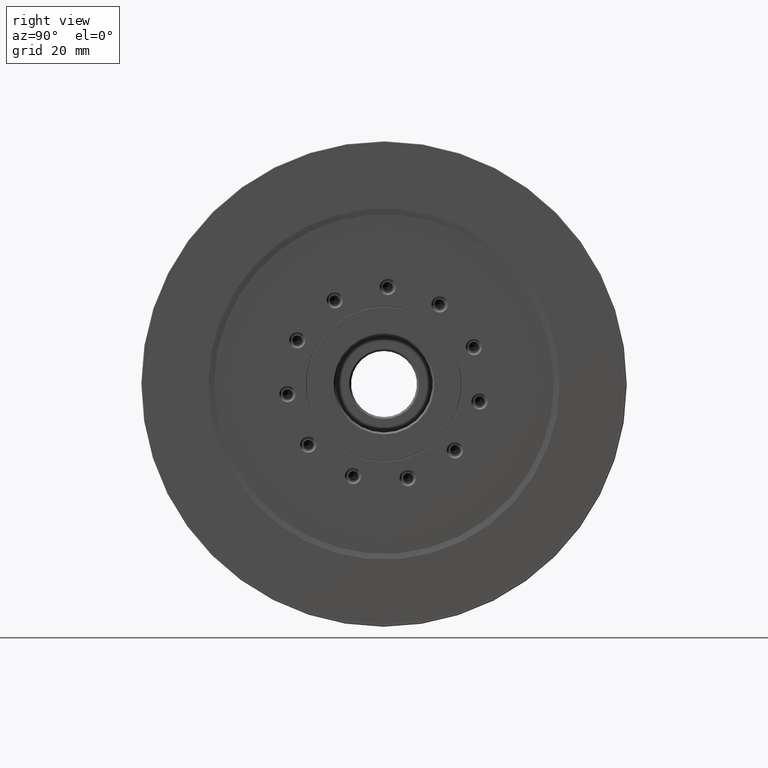
[diagram: clean part render]
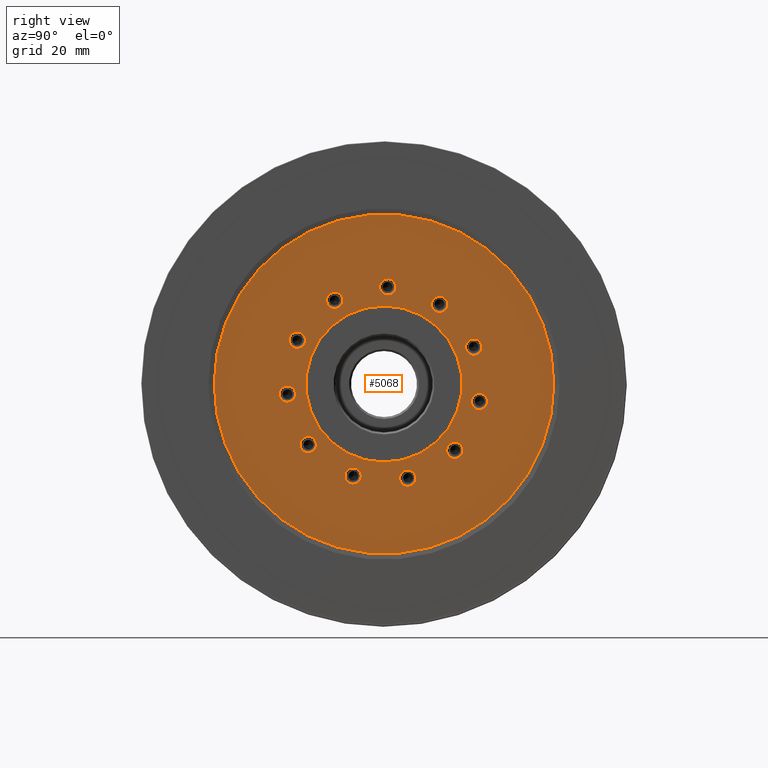
[diagram: same view with one face highlighted and labeled with its STEP entity id]
A machine part, right view. The second image highlights one B-rep face of the part: STEP entity #5068.
In plain terms, the highlighted planar face has unit normal (1, 0, 0).
Its self-contained STEP definition (entity closure, byte-faithful):
#49 = CARTESIAN_POINT ( 'NONE',  ( 0.0000000000000000000, 0.0000000000000000000, 0.0000000000000000000 ) ) ;
#70 = CARTESIAN_POINT ( 'NONE',  ( -2.168404344971008868E-16, 20.20759024478783417, -16.16307696254305881 ) ) ;
#134 = ORIENTED_EDGE ( 'NONE', *, *, #250, .T. ) ;
#167 = DIRECTION ( 'NONE',  ( 0.0000000000000000000, -0.9096319953545195514, 0.4154150130018839371 ) ) ;
#171 = CIRCLE ( 'NONE', #822, 2.100000000000004530 ) ;
#223 = AXIS2_PLACEMENT_3D ( 'NONE', #4917, #6428, #2395 ) ;
#236 = EDGE_LOOP ( 'NONE', ( #3576, #2098 ) ) ;
#249 = DIRECTION ( 'NONE',  ( 0.0000000000000000000, 0.0000000000000000000, -1.000000000000000000 ) ) ;
#250 = EDGE_CURVE ( 'NONE', #4642, #2436, #6564, .T. ) ;
#255 = FACE_BOUND ( 'NONE', #4768, .T. ) ;
#309 = ORIENTED_EDGE ( 'NONE', *, *, #6037, .T. ) ;
#378 = VERTEX_POINT ( 'NONE', #2579 ) ;
#381 = AXIS2_PLACEMENT_3D ( 'NONE', #2697, #1157, #167 ) ;
#392 = EDGE_CURVE ( 'NONE', #1994, #6565, #6323, .T. ) ;
#429 = AXIS2_PLACEMENT_3D ( 'NONE', #6129, #5177, #2077 ) ;
#455 = CIRCLE ( 'NONE', #5137, 20.10000000000003340 ) ;
#472 = ORIENTED_EDGE ( 'NONE', *, *, #2017, .T. ) ;
#480 = FACE_BOUND ( 'NONE', #4872, .T. ) ;
#559 = DIRECTION ( 'NONE',  ( -1.000000000000000000, 0.0000000000000000000, 0.0000000000000000000 ) ) ;
#674 = DIRECTION ( 'NONE',  ( 0.0000000000000000000, 0.9898214418809341275, -0.1423148382732750961 ) ) ;
#776 = AXIS2_PLACEMENT_3D ( 'NONE', #2665, #3702, #6299 ) ;
#781 = CARTESIAN_POINT ( 'NONE',  ( -2.168404344971008868E-16, -18.87440008187672547, -17.70166042911191084 ) ) ;
#785 = CIRCLE ( 'NONE', #2498, 2.100000000000004530 ) ;
#799 = EDGE_LOOP ( 'NONE', ( #2333, #2367 ) ) ;
#801 = EDGE_LOOP ( 'NONE', ( #6113, #3688 ) ) ;
#822 = AXIS2_PLACEMENT_3D ( 'NONE', #3136, #4749, #4270 ) ;
#829 = CIRCLE ( 'NONE', #381, 2.100000000000003642 ) ;
#841 = EDGE_CURVE ( 'NONE', #378, #4552, #5377, .T. ) ;
#844 = EDGE_LOOP ( 'NONE', ( #2960, #2921 ) ) ;
#857 = EDGE_CURVE ( 'NONE', #3016, #2118, #5456, .T. ) ;
#859 = VERTEX_POINT ( 'NONE', #6596 ) ;
#867 = VERTEX_POINT ( 'NONE', #5188 ) ;
#877 = VERTEX_POINT ( 'NONE', #3160 ) ;
#897 = FACE_BOUND ( 'NONE', #801, .T. ) ;
#898 = ORIENTED_EDGE ( 'NONE', *, *, #6075, .T. ) ;
#977 = DIRECTION ( 'NONE',  ( 0.0000000000000000000, -0.9898214418809321291, -0.1423148382732883910 ) ) ;
#1065 = CARTESIAN_POINT ( 'NONE',  ( -2.168404344971008868E-16, -7.894989690375383340, -23.72064792093307162 ) ) ;
#1073 = CIRCLE ( 'NONE', #1637, 20.10000000000003340 ) ;
#1126 = DIRECTION ( 'NONE',  ( 0.0000000000000000000, -0.7557495743542546052, -0.6548607339452892084 ) ) ;
#1157 = DIRECTION ( 'NONE',  ( -1.000000000000000000, 0.0000000000000000000, -0.0000000000000000000 ) ) ;
#1187 = DIRECTION ( 'NONE',  ( 0.0000000000000000000, -0.5406408174555985546, 0.8412535328311806504 ) ) ;
#1274 = CARTESIAN_POINT ( 'NONE',  ( -2.168404344971008868E-16, 6.182662513855665232, -24.22343254453761219 ) ) ;
#1288 = ORIENTED_EDGE ( 'NONE', *, *, #1727, .T. ) ;
#1290 = CARTESIAN_POINT ( 'NONE',  ( 0.0000000000000000000, -2.584669498855469265E-15, -3.499488488377420905E-14 ) ) ;
#1370 = CIRCLE ( 'NONE', #429, 43.73482816843974774 ) ;
#1466 = EDGE_CURVE ( 'NONE', #2436, #4642, #4575, .T. ) ;
#1485 = AXIS2_PLACEMENT_3D ( 'NONE', #4484, #4545, #3995 ) ;
#1548 = CARTESIAN_POINT ( 'NONE',  ( -2.168404344971008868E-16, 18.29736305454335366, -17.03544848984704174 ) ) ;
#1565 = DIRECTION ( 'NONE',  ( 0.0000000000000000000, 0.0000000000000000000, 1.000000000000000000 ) ) ;
#1593 = DIRECTION ( 'NONE',  ( -1.000000000000000000, -0.0000000000000000000, 0.0000000000000000000 ) ) ;
#1622 = EDGE_LOOP ( 'NONE', ( #4262, #6208 ) ) ;
#1637 = AXIS2_PLACEMENT_3D ( 'NONE', #6431, #2844, #249 ) ;
#1650 = VERTEX_POINT ( 'NONE', #2615 ) ;
#1659 = CARTESIAN_POINT ( 'NONE',  ( -2.168404344971008868E-16, -20.05767682061076229, -13.67178993993102232 ) ) ;
#1660 = CARTESIAN_POINT ( 'NONE',  ( -2.168404344971008868E-16, 6.182662513855665232, -24.22343254453761219 ) ) ;
#1663 = CARTESIAN_POINT ( 'NONE',  ( -2.168404344971008868E-16, 14.25806592337406187, 20.53551937801232441 ) ) ;
#1727 = EDGE_CURVE ( 'NONE', #2812, #1650, #171, .T. ) ;
#1731 = EDGE_CURVE ( 'NONE', #2220, #3802, #4491, .T. ) ;
#1732 = VERTEX_POINT ( 'NONE', #5253 ) ;
#1808 = CIRCLE ( 'NONE', #6702, 2.100000000000004530 ) ;
#1830 = CARTESIAN_POINT ( 'NONE',  ( -2.168404344971008868E-16, 23.09698831278215891, 11.66708580912726845 ) ) ;
#1864 = FACE_BOUND ( 'NONE', #844, .T. ) ;
#1901 = ORIENTED_EDGE ( 'NONE', *, *, #5374, .F. ) ;
#1994 = VERTEX_POINT ( 'NONE', #2338 ) ;
#1997 = AXIS2_PLACEMENT_3D ( 'NONE', #2028, #2074, #3790 ) ;
#2008 = AXIS2_PLACEMENT_3D ( 'NONE', #1548, #1593, #2601 ) ;
#2017 = EDGE_CURVE ( 'NONE', #3802, #2220, #2066, .T. ) ;
#2028 = CARTESIAN_POINT ( 'NONE',  ( -2.168404344971008868E-16, 24.60278010840296403, -4.438829906357230293 ) ) ;
#2066 = CIRCLE ( 'NONE', #5556, 2.100000000000003197 ) ;
#2074 = DIRECTION ( 'NONE',  ( -1.000000000000000000, -0.0000000000000000000, 0.0000000000000000000 ) ) ;
#2077 = DIRECTION ( 'NONE',  ( 0.0000000000000000000, 0.0000000000000000000, -1.000000000000000000 ) ) ;
#2098 = ORIENTED_EDGE ( 'NONE', *, *, #3935, .T. ) ;
#2118 = VERTEX_POINT ( 'NONE', #4735 ) ;
#2147 = EDGE_CURVE ( 'NONE', #6067, #6343, #2320, .T. ) ;
#2149 = CARTESIAN_POINT ( 'NONE',  ( -2.168404344971008868E-16, -12.75675082652259285, 21.50035600519245449 ) ) ;
#2163 = AXIS2_PLACEMENT_3D ( 'NONE', #1065, #2685, #5765 ) ;
#2167 = DIRECTION ( 'NONE',  ( 0.0000000000000000000, -0.5406408174555985546, 0.8412535328311806504 ) ) ;
#2182 = DIRECTION ( 'NONE',  ( -1.000000000000000000, 0.0000000000000000000, 0.0000000000000000000 ) ) ;
#2220 = VERTEX_POINT ( 'NONE', #3360 ) ;
#2283 = DIRECTION ( 'NONE',  ( 0.0000000000000000000, 0.0000000000000000000, -1.000000000000000000 ) ) ;
#2320 = CIRCLE ( 'NONE', #776, 2.100000000000003642 ) ;
#2333 = ORIENTED_EDGE ( 'NONE', *, *, #2147, .T. ) ;
#2338 = CARTESIAN_POINT ( 'NONE',  ( -2.168404344971008868E-16, 15.39341164003082163, 18.76888695906684035 ) ) ;
#2352 = AXIS2_PLACEMENT_3D ( 'NONE', #1274, #3305, #6447 ) ;
#2367 = ORIENTED_EDGE ( 'NONE', *, *, #4128, .T. ) ;
#2395 = DIRECTION ( 'NONE',  ( 0.0000000000000000000, 0.2817325568414366099, -0.9594929736144953702 ) ) ;
#2436 = VERTEX_POINT ( 'NONE', #5564 ) ;
#2498 = AXIS2_PLACEMENT_3D ( 'NONE', #1663, #5305, #1187 ) ;
#2515 = ORIENTED_EDGE ( 'NONE', *, *, #3132, .T. ) ;
#2531 = FACE_OUTER_BOUND ( 'NONE', #2972, .T. ) ;
#2538 = EDGE_LOOP ( 'NONE', ( #2515, #4788 ) ) ;
#2568 = DIRECTION ( 'NONE',  ( -1.000000000000000000, -0.0000000000000000000, 0.0000000000000000000 ) ) ;
#2579 = CARTESIAN_POINT ( 'NONE',  ( -2.168404344971008868E-16, -23.94270585263679152, 9.815222710282570873 ) ) ;
#2601 = DIRECTION ( 'NONE',  ( 0.0000000000000000000, 0.9096319953545134451, 0.4154150130018973708 ) ) ;
#2615 = CARTESIAN_POINT ( 'NONE',  ( -2.168404344971008868E-16, 23.09698831278215891, 7.467085809127261165 ) ) ;
#2665 = CARTESIAN_POINT ( 'NONE',  ( -2.168404344971008868E-16, 0.8923083459744240997, 24.98407064142479328 ) ) ;
#2685 = DIRECTION ( 'NONE',  ( -1.000000000000000000, 0.0000000000000000000, 0.0000000000000000000 ) ) ;
#2697 = CARTESIAN_POINT ( 'NONE',  ( -2.168404344971008868E-16, 0.8923083459744240997, 24.98407064142479328 ) ) ;
#2738 = AXIS2_PLACEMENT_3D ( 'NONE', #3731, #2182, #1126 ) ;
#2812 = VERTEX_POINT ( 'NONE', #1830 ) ;
#2833 = ORIENTED_EDGE ( 'NONE', *, *, #2925, .T. ) ;
#2844 = DIRECTION ( 'NONE',  ( -1.000000000000000000, 0.0000000000000000000, 0.0000000000000000000 ) ) ;
#2921 = ORIENTED_EDGE ( 'NONE', *, *, #392, .T. ) ;
#2925 = EDGE_CURVE ( 'NONE', #1650, #2812, #3645, .T. ) ;
#2955 = CIRCLE ( 'NONE', #4496, 2.100000000000004086 ) ;
#2960 = ORIENTED_EDGE ( 'NONE', *, *, #6131, .T. ) ;
#2972 = EDGE_LOOP ( 'NONE', ( #1901, #3334 ) ) ;
#2988 = DIRECTION ( 'NONE',  ( 0.0000000000000000000, -0.7557495743542546052, -0.6548607339452892084 ) ) ;
#3016 = VERTEX_POINT ( 'NONE', #5301 ) ;
#3035 = EDGE_LOOP ( 'NONE', ( #5912, #898 ) ) ;
#3104 = FACE_BOUND ( 'NONE', #236, .T. ) ;
#3106 = DIRECTION ( 'NONE',  ( 0.0000000000000000000, 0.0000000000000000000, -1.000000000000000000 ) ) ;
#3129 = VERTEX_POINT ( 'NONE', #4916 ) ;
#3132 = EDGE_CURVE ( 'NONE', #877, #5712, #4276, .T. ) ;
#3136 = CARTESIAN_POINT ( 'NONE',  ( -2.168404344971008868E-16, 23.09698831278215891, 9.567085809127265250 ) ) ;
#3141 = DIRECTION ( 'NONE',  ( 0.0000000000000000000, 0.2817325568414366099, -0.9594929736144953702 ) ) ;
#3160 = CARTESIAN_POINT ( 'NONE',  ( -2.168404344971008868E-16, 8.261287541805630852, -24.52229370491149041 ) ) ;
#3210 = EDGE_CURVE ( 'NONE', #4960, #5868, #5625, .T. ) ;
#3305 = DIRECTION ( 'NONE',  ( -1.000000000000000000, 0.0000000000000000000, 0.0000000000000000000 ) ) ;
#3334 = ORIENTED_EDGE ( 'NONE', *, *, #4201, .F. ) ;
#3355 = ORIENTED_EDGE ( 'NONE', *, *, #1731, .T. ) ;
#3360 = CARTESIAN_POINT ( 'NONE',  ( -2.168404344971008868E-16, -10.67812579857263167, 21.79921716556636113 ) ) ;
#3413 = AXIS2_PLACEMENT_3D ( 'NONE', #4662, #4107, #1565 ) ;
#3442 = FACE_BOUND ( 'NONE', #5921, .T. ) ;
#3464 = CARTESIAN_POINT ( 'NONE',  ( -2.168404344971008868E-16, -24.85675754429741602, -2.672378039128009419 ) ) ;
#3468 = CARTESIAN_POINT ( 'NONE',  ( -2.168404344971008868E-16, 18.29736305454335366, -17.03544848984704174 ) ) ;
#3576 = ORIENTED_EDGE ( 'NONE', *, *, #841, .T. ) ;
#3645 = CIRCLE ( 'NONE', #3413, 2.100000000000004530 ) ;
#3649 = EDGE_CURVE ( 'NONE', #5712, #877, #5698, .T. ) ;
#3659 = CARTESIAN_POINT ( 'NONE',  ( 0.0000000000000000000, 43.73482816843974774, -1.848892746611746419E-29 ) ) ;
#3671 = CARTESIAN_POINT ( 'NONE',  ( -2.168404344971008868E-16, -24.26511917493042603, -0.6574427945375574955 ) ) ;
#3683 = DIRECTION ( 'NONE',  ( -1.000000000000000000, -0.0000000000000000000, 0.0000000000000000000 ) ) ;
#3688 = ORIENTED_EDGE ( 'NONE', *, *, #3210, .T. ) ;
#3697 = DIRECTION ( 'NONE',  ( -1.000000000000000000, 0.0000000000000000000, 0.0000000000000000000 ) ) ;
#3700 = CARTESIAN_POINT ( 'NONE',  ( -2.168404344971008868E-16, -20.76855764034891649, 12.56563779285279203 ) ) ;
#3702 = DIRECTION ( 'NONE',  ( -1.000000000000000000, 0.0000000000000000000, -0.0000000000000000000 ) ) ;
#3711 = CIRCLE ( 'NONE', #1485, 2.100000000000004530 ) ;
#3715 = EDGE_CURVE ( 'NONE', #5868, #4960, #3711, .T. ) ;
#3731 = CARTESIAN_POINT ( 'NONE',  ( -2.168404344971008868E-16, -22.35563174649285401, 11.19043025156768145 ) ) ;
#3790 = DIRECTION ( 'NONE',  ( 0.0000000000000000000, 0.5406408174555863422, 0.8412535328311884220 ) ) ;
#3802 = VERTEX_POINT ( 'NONE', #3900 ) ;
#3900 = CARTESIAN_POINT ( 'NONE',  ( -2.168404344971008868E-16, -14.83537585447255225, 21.20149484481855140 ) ) ;
#3909 = FACE_BOUND ( 'NONE', #799, .T. ) ;
#3935 = EDGE_CURVE ( 'NONE', #4552, #378, #1808, .T. ) ;
#3995 = DIRECTION ( 'NONE',  ( 0.0000000000000000000, -0.2817325568414233428, -0.9594929736144992560 ) ) ;
#4107 = DIRECTION ( 'NONE',  ( -1.000000000000000000, -0.0000000000000000000, -0.0000000000000000000 ) ) ;
#4128 = EDGE_CURVE ( 'NONE', #6343, #6067, #829, .T. ) ;
#4201 = EDGE_CURVE ( 'NONE', #867, #5418, #5775, .T. ) ;
#4212 = ORIENTED_EDGE ( 'NONE', *, *, #4778, .T. ) ;
#4262 = ORIENTED_EDGE ( 'NONE', *, *, #4492, .T. ) ;
#4270 = DIRECTION ( 'NONE',  ( 0.0000000000000000000, 0.0000000000000000000, 1.000000000000000000 ) ) ;
#4276 = CIRCLE ( 'NONE', #2352, 2.100000000000004530 ) ;
#4307 = CIRCLE ( 'NONE', #6671, 2.100000000000003197 ) ;
#4317 = CARTESIAN_POINT ( 'NONE',  ( -2.168404344971008868E-16, 25.73812582505969715, -2.672197487411732020 ) ) ;
#4484 = CARTESIAN_POINT ( 'NONE',  ( -2.168404344971008868E-16, -24.85675754429741602, -2.672378039128009419 ) ) ;
#4491 = CIRCLE ( 'NONE', #6265, 2.100000000000003197 ) ;
#4492 = EDGE_CURVE ( 'NONE', #6248, #4698, #2955, .T. ) ;
#4496 = AXIS2_PLACEMENT_3D ( 'NONE', #5768, #5715, #3141 ) ;
#4516 = AXIS2_PLACEMENT_3D ( 'NONE', #4817, #6275, #2167 ) ;
#4526 = AXIS2_PLACEMENT_3D ( 'NONE', #1660, #5350, #674 ) ;
#4542 = CARTESIAN_POINT ( 'NONE',  ( -2.168404344971008868E-16, -22.35563174649285401, 11.19043025156768145 ) ) ;
#4545 = DIRECTION ( 'NONE',  ( -1.000000000000000000, 0.0000000000000000000, 0.0000000000000000000 ) ) ;
#4552 = VERTEX_POINT ( 'NONE', #3700 ) ;
#4575 = CIRCLE ( 'NONE', #1997, 2.100000000000003642 ) ;
#4642 = VERTEX_POINT ( 'NONE', #4317 ) ;
#4648 = FACE_BOUND ( 'NONE', #1622, .T. ) ;
#4662 = CARTESIAN_POINT ( 'NONE',  ( -2.168404344971008868E-16, 23.09698831278215891, 9.567085809127265250 ) ) ;
#4690 = CARTESIAN_POINT ( 'NONE',  ( -2.168404344971008868E-16, -12.75675082652259285, 21.50035600519245449 ) ) ;
#4698 = VERTEX_POINT ( 'NONE', #1659 ) ;
#4700 = DIRECTION ( 'NONE',  ( 0.0000000000000000000, -0.9898214418809321291, -0.1423148382732883910 ) ) ;
#4714 = CARTESIAN_POINT ( 'NONE',  ( -2.168404344971008868E-16, 24.60278010840296403, -4.438829906357230293 ) ) ;
#4735 = CARTESIAN_POINT ( 'NONE',  ( -2.168404344971008868E-16, -9.482063796519341281, -22.34544037964798591 ) ) ;
#4749 = DIRECTION ( 'NONE',  ( -1.000000000000000000, -0.0000000000000000000, -0.0000000000000000000 ) ) ;
#4761 = EDGE_CURVE ( 'NONE', #859, #3129, #1073, .T. ) ;
#4768 = EDGE_LOOP ( 'NONE', ( #5006, #6439 ) ) ;
#4778 = EDGE_CURVE ( 'NONE', #6025, #1732, #5669, .T. ) ;
#4788 = ORIENTED_EDGE ( 'NONE', *, *, #3649, .T. ) ;
#4807 = DIRECTION ( 'NONE',  ( -1.000000000000000000, 0.0000000000000000000, 0.0000000000000000000 ) ) ;
#4817 = CARTESIAN_POINT ( 'NONE',  ( -2.168404344971008868E-16, 14.25806592337406187, 20.53551937801232441 ) ) ;
#4830 = PLANE ( 'NONE',  #5217 ) ;
#4872 = EDGE_LOOP ( 'NONE', ( #134, #5822 ) ) ;
#4916 = CARTESIAN_POINT ( 'NONE',  ( 0.0000000000000000000, 2.461540066286184209E-15, 20.10000000000003340 ) ) ;
#4917 = CARTESIAN_POINT ( 'NONE',  ( -2.168404344971008868E-16, -19.46603845124374388, -15.68672518452146569 ) ) ;
#4960 = VERTEX_POINT ( 'NONE', #3671 ) ;
#4961 = FACE_BOUND ( 'NONE', #3035, .T. ) ;
#5006 = ORIENTED_EDGE ( 'NONE', *, *, #857, .T. ) ;
#5068 = ADVANCED_FACE ( 'NONE', ( #4961, #5596, #1864, #3909, #3442, #3104, #897, #4648, #255, #5283, #5663, #480, #2531 ), #4830, .T. ) ;
#5115 = EDGE_CURVE ( 'NONE', #4698, #6248, #6150, .T. ) ;
#5128 = AXIS2_PLACEMENT_3D ( 'NONE', #3468, #2568, #5645 ) ;
#5137 = AXIS2_PLACEMENT_3D ( 'NONE', #49, #559, #3106 ) ;
#5177 = DIRECTION ( 'NONE',  ( -1.000000000000000000, 0.0000000000000000000, 0.0000000000000000000 ) ) ;
#5179 = EDGE_LOOP ( 'NONE', ( #4212, #309 ) ) ;
#5188 = CARTESIAN_POINT ( 'NONE',  ( 0.0000000000000000000, -43.73482816843974774, 5.447941779098039719E-15 ) ) ;
#5189 = EDGE_LOOP ( 'NONE', ( #1288, #2833 ) ) ;
#5196 = DIRECTION ( 'NONE',  ( -1.000000000000000000, 0.0000000000000000000, 0.0000000000000000000 ) ) ;
#5217 = AXIS2_PLACEMENT_3D ( 'NONE', #5855, #5340, #5876 ) ;
#5253 = CARTESIAN_POINT ( 'NONE',  ( -2.168404344971008868E-16, 16.38713586429887314, -17.90782001715102822 ) ) ;
#5283 = FACE_BOUND ( 'NONE', #2538, .T. ) ;
#5301 = CARTESIAN_POINT ( 'NONE',  ( -2.168404344971008868E-16, -6.307915584231426287, -25.09585546221815733 ) ) ;
#5305 = DIRECTION ( 'NONE',  ( -1.000000000000000000, 0.0000000000000000000, -0.0000000000000000000 ) ) ;
#5340 = DIRECTION ( 'NONE',  ( 1.000000000000000000, 0.0000000000000000000, -0.0000000000000000000 ) ) ;
#5350 = DIRECTION ( 'NONE',  ( -1.000000000000000000, 0.0000000000000000000, 0.0000000000000000000 ) ) ;
#5374 = EDGE_CURVE ( 'NONE', #5418, #867, #1370, .T. ) ;
#5377 = CIRCLE ( 'NONE', #2738, 2.100000000000004530 ) ;
#5394 = CARTESIAN_POINT ( 'NONE',  ( -2.168404344971008868E-16, 2.802535536218918377, 24.11169911412083522 ) ) ;
#5418 = VERTEX_POINT ( 'NONE', #3659 ) ;
#5456 = CIRCLE ( 'NONE', #2163, 2.100000000000003197 ) ;
#5556 = AXIS2_PLACEMENT_3D ( 'NONE', #4690, #5196, #977 ) ;
#5564 = CARTESIAN_POINT ( 'NONE',  ( -2.168404344971008868E-16, 23.46743439174623092, -6.205462325302729454 ) ) ;
#5576 = EDGE_CURVE ( 'NONE', #2118, #3016, #4307, .T. ) ;
#5588 = AXIS2_PLACEMENT_3D ( 'NONE', #3464, #6449, #5995 ) ;
#5596 = FACE_BOUND ( 'NONE', #5189, .T. ) ;
#5625 = CIRCLE ( 'NONE', #5588, 2.100000000000004530 ) ;
#5626 = AXIS2_PLACEMENT_3D ( 'NONE', #1290, #6483, #2283 ) ;
#5645 = DIRECTION ( 'NONE',  ( 0.0000000000000000000, 0.9096319953545134451, 0.4154150130018973708 ) ) ;
#5663 = FACE_BOUND ( 'NONE', #5179, .T. ) ;
#5669 = CIRCLE ( 'NONE', #5128, 2.100000000000002309 ) ;
#5698 = CIRCLE ( 'NONE', #4526, 2.100000000000004530 ) ;
#5712 = VERTEX_POINT ( 'NONE', #5871 ) ;
#5715 = DIRECTION ( 'NONE',  ( -1.000000000000000000, 0.0000000000000000000, 0.0000000000000000000 ) ) ;
#5746 = CARTESIAN_POINT ( 'NONE',  ( -2.168404344971008868E-16, -1.017918844270070178, 25.85644216872875134 ) ) ;
#5765 = DIRECTION ( 'NONE',  ( 0.0000000000000000000, 0.7557495743542642641, -0.6548607339452779952 ) ) ;
#5768 = CARTESIAN_POINT ( 'NONE',  ( -2.168404344971008868E-16, -19.46603845124374388, -15.68672518452146569 ) ) ;
#5775 = CIRCLE ( 'NONE', #5626, 43.73482816843974774 ) ;
#5778 = CARTESIAN_POINT ( 'NONE',  ( -2.168404344971008868E-16, -7.894989690375383340, -23.72064792093307162 ) ) ;
#5788 = AXIS2_PLACEMENT_3D ( 'NONE', #4714, #3683, #6238 ) ;
#5822 = ORIENTED_EDGE ( 'NONE', *, *, #1466, .T. ) ;
#5855 = CARTESIAN_POINT ( 'NONE',  ( 0.0000000000000000000, 19.00000000000000000, 0.0000000000000000000 ) ) ;
#5868 = VERTEX_POINT ( 'NONE', #6667 ) ;
#5871 = CARTESIAN_POINT ( 'NONE',  ( -2.168404344971008868E-16, 4.104037485905698723, -23.92457138416373397 ) ) ;
#5876 = DIRECTION ( 'NONE',  ( -0.0000000000000000000, 0.0000000000000000000, -1.000000000000000000 ) ) ;
#5912 = ORIENTED_EDGE ( 'NONE', *, *, #4761, .T. ) ;
#5921 = EDGE_LOOP ( 'NONE', ( #472, #3355 ) ) ;
#5995 = DIRECTION ( 'NONE',  ( 0.0000000000000000000, -0.2817325568414233428, -0.9594929736144992560 ) ) ;
#6025 = VERTEX_POINT ( 'NONE', #70 ) ;
#6037 = EDGE_CURVE ( 'NONE', #1732, #6025, #6615, .T. ) ;
#6043 = CARTESIAN_POINT ( 'NONE',  ( -2.168404344971008868E-16, 13.12272020671730210, 22.30215179695780847 ) ) ;
#6067 = VERTEX_POINT ( 'NONE', #5746 ) ;
#6075 = EDGE_CURVE ( 'NONE', #3129, #859, #455, .T. ) ;
#6113 = ORIENTED_EDGE ( 'NONE', *, *, #3715, .T. ) ;
#6129 = CARTESIAN_POINT ( 'NONE',  ( 0.0000000000000000000, -2.584669498855469265E-15, -3.499488488377420905E-14 ) ) ;
#6131 = EDGE_CURVE ( 'NONE', #6565, #1994, #785, .T. ) ;
#6150 = CIRCLE ( 'NONE', #223, 2.100000000000004086 ) ;
#6208 = ORIENTED_EDGE ( 'NONE', *, *, #5115, .T. ) ;
#6238 = DIRECTION ( 'NONE',  ( 0.0000000000000000000, 0.5406408174555863422, 0.8412535328311884220 ) ) ;
#6248 = VERTEX_POINT ( 'NONE', #781 ) ;
#6265 = AXIS2_PLACEMENT_3D ( 'NONE', #2149, #3697, #4700 ) ;
#6275 = DIRECTION ( 'NONE',  ( -1.000000000000000000, 0.0000000000000000000, -0.0000000000000000000 ) ) ;
#6299 = DIRECTION ( 'NONE',  ( 0.0000000000000000000, -0.9096319953545195514, 0.4154150130018839371 ) ) ;
#6323 = CIRCLE ( 'NONE', #4516, 2.100000000000004530 ) ;
#6334 = DIRECTION ( 'NONE',  ( 0.0000000000000000000, 0.7557495743542642641, -0.6548607339452779952 ) ) ;
#6343 = VERTEX_POINT ( 'NONE', #5394 ) ;
#6428 = DIRECTION ( 'NONE',  ( -1.000000000000000000, 0.0000000000000000000, 0.0000000000000000000 ) ) ;
#6431 = CARTESIAN_POINT ( 'NONE',  ( 0.0000000000000000000, 0.0000000000000000000, 0.0000000000000000000 ) ) ;
#6439 = ORIENTED_EDGE ( 'NONE', *, *, #5576, .T. ) ;
#6447 = DIRECTION ( 'NONE',  ( 0.0000000000000000000, 0.9898214418809341275, -0.1423148382732750961 ) ) ;
#6449 = DIRECTION ( 'NONE',  ( -1.000000000000000000, 0.0000000000000000000, 0.0000000000000000000 ) ) ;
#6483 = DIRECTION ( 'NONE',  ( -1.000000000000000000, 0.0000000000000000000, 0.0000000000000000000 ) ) ;
#6564 = CIRCLE ( 'NONE', #5788, 2.100000000000003642 ) ;
#6565 = VERTEX_POINT ( 'NONE', #6043 ) ;
#6596 = CARTESIAN_POINT ( 'NONE',  ( 0.0000000000000000000, 0.0000000000000000000, -20.10000000000003340 ) ) ;
#6610 = DIRECTION ( 'NONE',  ( -1.000000000000000000, 0.0000000000000000000, 0.0000000000000000000 ) ) ;
#6615 = CIRCLE ( 'NONE', #2008, 2.100000000000002309 ) ;
#6667 = CARTESIAN_POINT ( 'NONE',  ( -2.168404344971008868E-16, -25.44839591366440601, -4.687313283718462564 ) ) ;
#6671 = AXIS2_PLACEMENT_3D ( 'NONE', #5778, #4807, #6334 ) ;
#6702 = AXIS2_PLACEMENT_3D ( 'NONE', #4542, #6610, #2988 ) ;